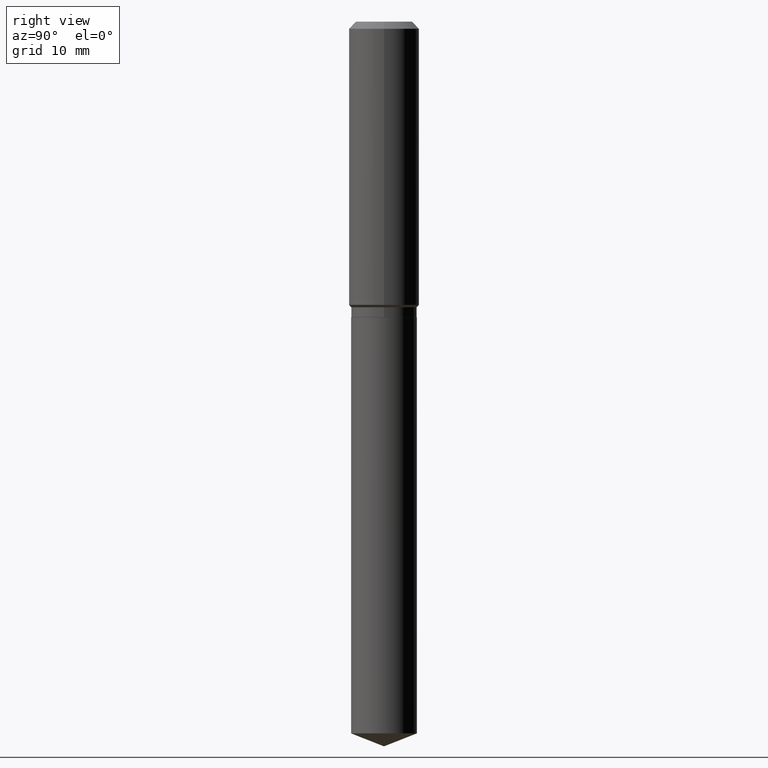
[diagram: clean part render]
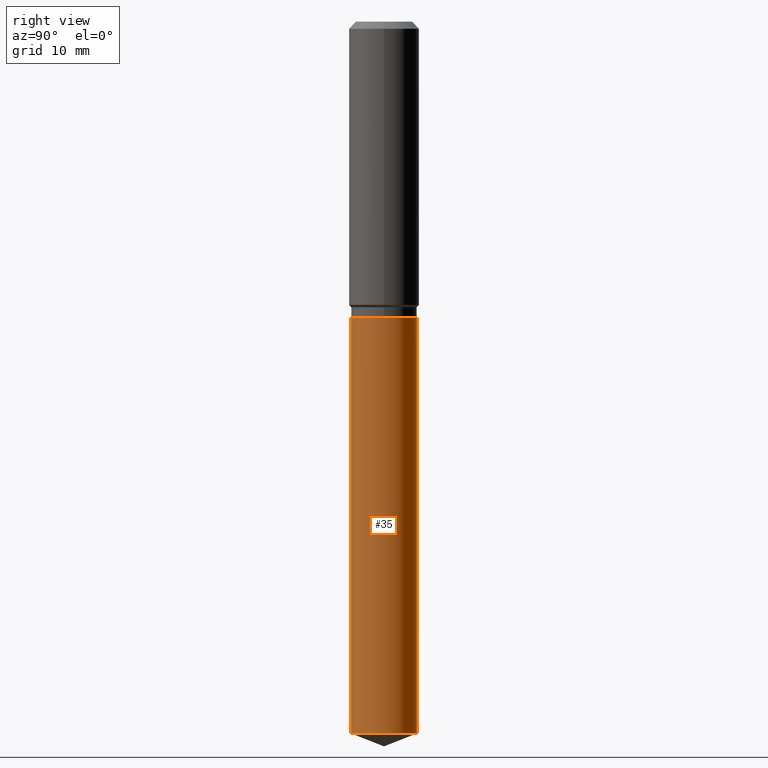
[diagram: same view with one face highlighted and labeled with its STEP entity id]
A machine part, right view. The second image highlights one B-rep face of the part: STEP entity #35.
In plain terms, the highlighted cylindrical surface (edge-blend (fillet) strip) has radius 4.6736 mm, axis along (-0, 0, 1).
Its self-contained STEP definition (entity closure, byte-faithful):
#1 = EDGE_CURVE ( 'NONE', #282, #129, #23, .T. ) ;
#21 = LINE ( 'NONE', #207, #214 ) ;
#23 = LINE ( 'NONE', #134, #401 ) ;
#35 = ADVANCED_FACE ( 'NONE', ( #256 ), #227, .T. ) ;
#42 = DIRECTION ( 'NONE',  ( -6.982962677686265133E-15, -1.000000000000000000, 2.969399993113329585E-15 ) ) ;
#55 = CARTESIAN_POINT ( 'NONE',  ( 1.307398633798681744E-15, 0.1839999999999941960, -1.653400000000000203 ) ) ;
#65 = CARTESIAN_POINT ( 'NONE',  ( -1.284865132694232346E-15, -0.1840000000000057701, -1.653399999999999093 ) ) ;
#69 = AXIS2_PLACEMENT_3D ( 'NONE', #386, #153, #42 ) ;
#75 = CIRCLE ( 'NONE', #69, 0.1839999999999999969 ) ;
#91 = ORIENTED_EDGE ( 'NONE', *, *, #307, .T. ) ;
#98 = ORIENTED_EDGE ( 'NONE', *, *, #244, .F. ) ;
#129 = VERTEX_POINT ( 'NONE', #65 ) ;
#134 = CARTESIAN_POINT ( 'NONE',  ( -1.284865132694232346E-15, -0.1840000000000057701, -1.653399999999999093 ) ) ;
#148 = DIRECTION ( 'NONE',  ( -6.982962677686265133E-15, -1.000000000000000000, 2.969399993113329585E-15 ) ) ;
#153 = DIRECTION ( 'NONE',  ( -2.445540233102860963E-29, 3.491379051431596489E-15, 1.000000000000000000 ) ) ;
#156 = CARTESIAN_POINT ( 'NONE',  ( -1.284865132694176140E-15, -0.1840000000000139302, -3.982520472486849705 ) ) ;
#163 = EDGE_CURVE ( 'NONE', #282, #263, #75, .T. ) ;
#207 = CARTESIAN_POINT ( 'NONE',  ( 1.307398633798624552E-15, 0.1839999999999942237, -1.653400000000000203 ) ) ;
#210 = ORIENTED_EDGE ( 'NONE', *, *, #163, .T. ) ;
#214 = VECTOR ( 'NONE', #239, 39.37007874015748143 ) ;
#227 = CYLINDRICAL_SURFACE ( 'NONE', #440, 0.1839999999999999969 ) ;
#239 = DIRECTION ( 'NONE',  ( -2.445540233102860683E-29, 3.491379051431596884E-15, 1.000000000000000000 ) ) ;
#244 = EDGE_CURVE ( 'NONE', #129, #369, #385, .T. ) ;
#249 = AXIS2_PLACEMENT_3D ( 'NONE', #341, #302, #308 ) ;
#256 = FACE_OUTER_BOUND ( 'NONE', #287, .T. ) ;
#263 = VERTEX_POINT ( 'NONE', #382 ) ;
#282 = VERTEX_POINT ( 'NONE', #156 ) ;
#287 = EDGE_LOOP ( 'NONE', ( #210, #91, #98, #445 ) ) ;
#302 = DIRECTION ( 'NONE',  ( -2.445540233102860963E-29, 3.491379051431596489E-15, 1.000000000000000000 ) ) ;
#307 = EDGE_CURVE ( 'NONE', #263, #369, #21, .T. ) ;
#308 = DIRECTION ( 'NONE',  ( -6.982962677686265133E-15, -1.000000000000000000, 2.969399993113329585E-15 ) ) ;
#341 = CARTESIAN_POINT ( 'NONE',  ( 4.043338124146503856E-29, -5.772815245643255193E-15, -1.653399999999999537 ) ) ;
#367 = DIRECTION ( 'NONE',  ( -2.445540233102860963E-29, 3.491379051431596489E-15, 1.000000000000000000 ) ) ;
#369 = VERTEX_POINT ( 'NONE', #55 ) ;
#371 = CARTESIAN_POINT ( 'NONE',  ( 4.043338124146503856E-29, -5.772815245643255193E-15, -1.653399999999999537 ) ) ;
#382 = CARTESIAN_POINT ( 'NONE',  ( 1.307398633798681941E-15, 0.1839999999999861746, -3.982520472486851038 ) ) ;
#385 = CIRCLE ( 'NONE', #249, 0.1839999999999999969 ) ;
#386 = CARTESIAN_POINT ( 'NONE',  ( 9.739295947356642418E-29, -1.390465767154430748E-14, -3.982520472486850593 ) ) ;
#401 = VECTOR ( 'NONE', #479, 39.37007874015748143 ) ;
#440 = AXIS2_PLACEMENT_3D ( 'NONE', #371, #367, #148 ) ;
#445 = ORIENTED_EDGE ( 'NONE', *, *, #1, .F. ) ;
#479 = DIRECTION ( 'NONE',  ( -2.445540233102860683E-29, 3.491379051431596884E-15, 1.000000000000000000 ) ) ;